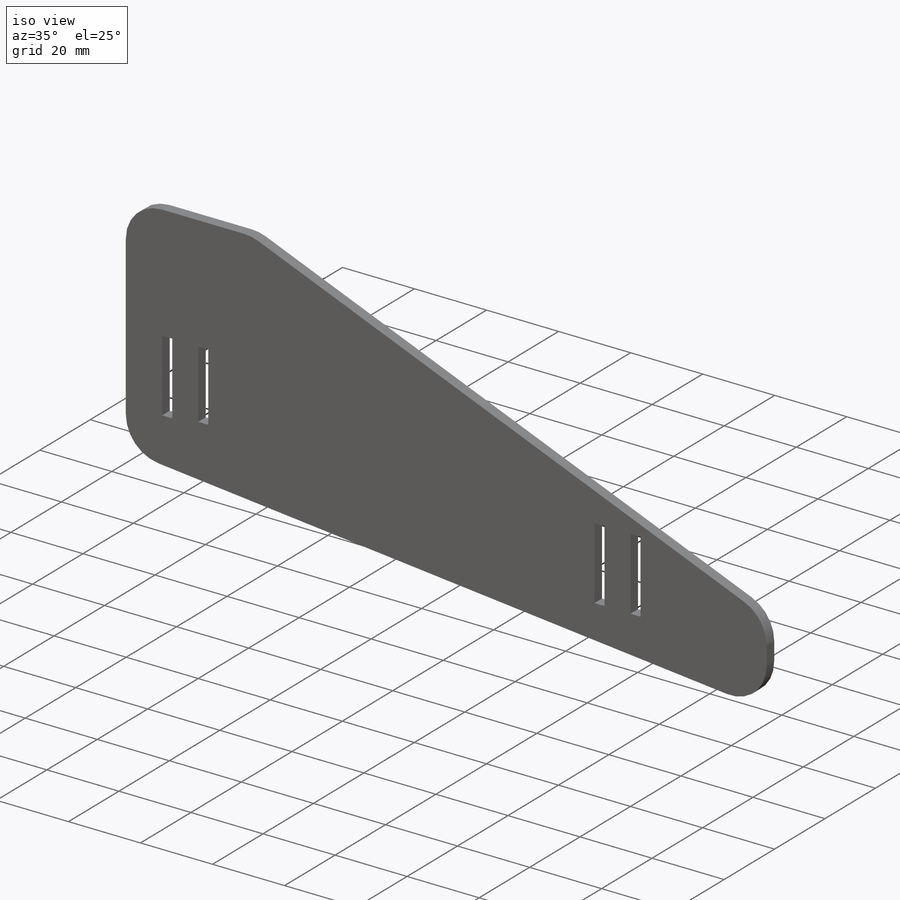
[diagram: iso view]
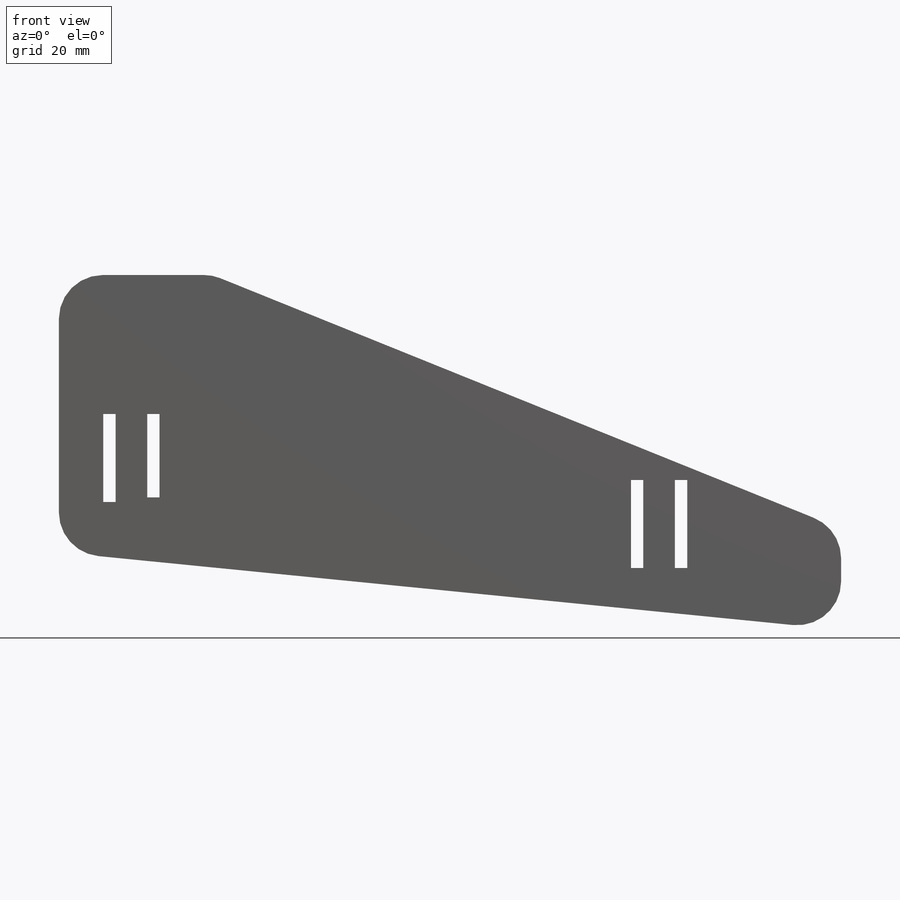
[diagram: front view]
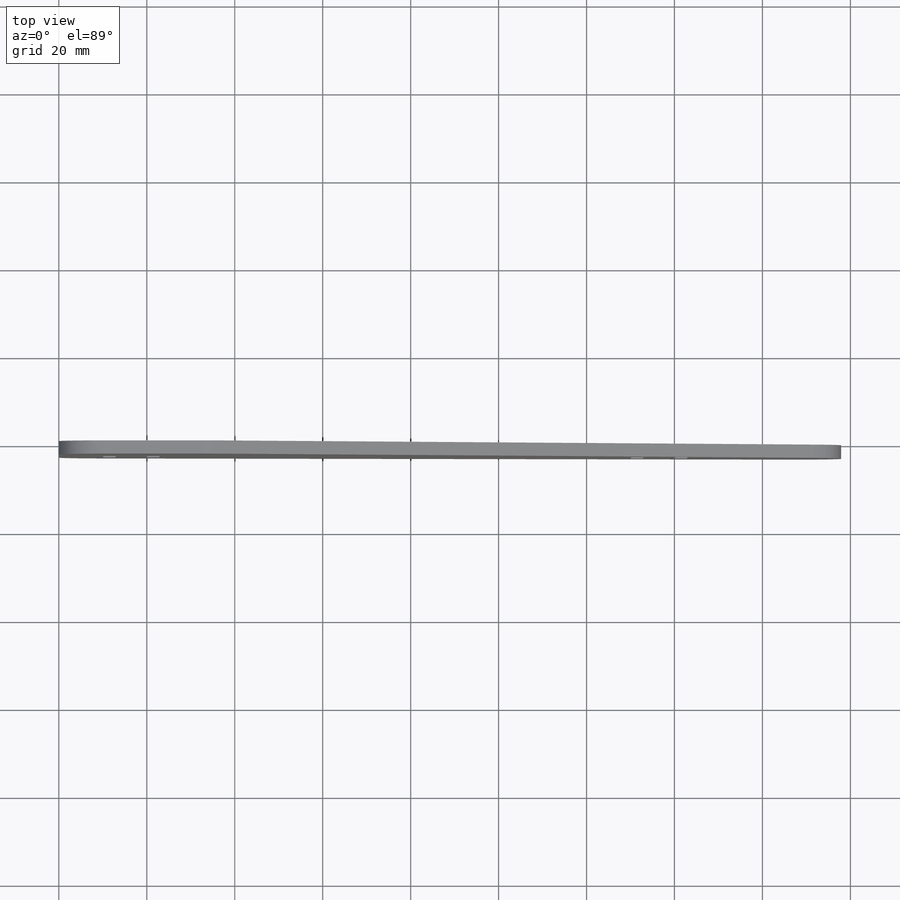
[diagram: top view]
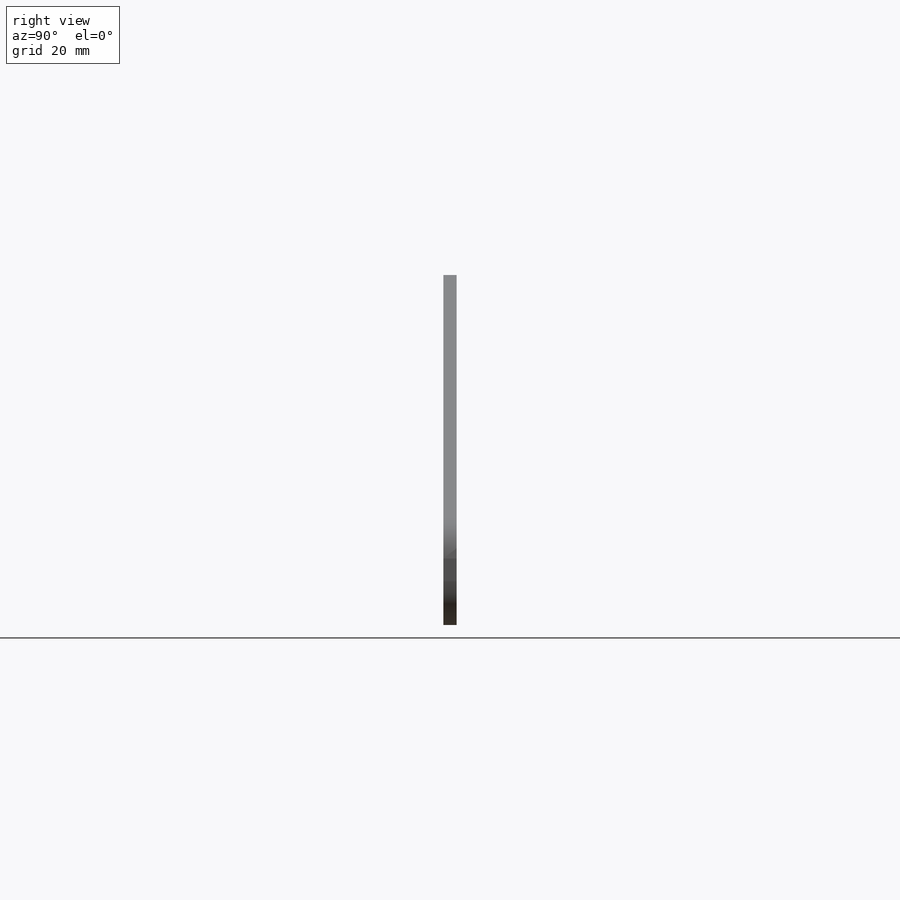
[diagram: right view]
SOLIDWORKS PART (.sldprt)
format: sldprt  version: not decoded by parser v0  size: 207,360 bytes
history: native  units: mm
features: sketch x2, fillet x2, material x1, extrude x1, cut_extrude x1 (+11 scaffold rows collapsed)
feature tree (18):
  scaffold x11  (default folders/planes/origin — collapsed)
  material  "Acrylic (Medium-high impact)"
  sketch  "Sketch2"  dims[c1.D1=25.0mm c1.D2=10.0mm c1.D3=2.0mm c1.D4=20.0mm c1.D5=~2.426776mm c2.D4=20.0mm c2.D5=~2.386993mm c3.D4=0.1mm c3.D5=0.1mm c3.D6=0.1mm c3.D7=0.1mm c3.D8=0.1mm c3.D9=0.1mm c3.D10=0.1mm c3.D11=0.1mm]
  extrude  "Boss-Extrude1"  Depth=3mm
  fillet  "Fillet1"  Radius=10mm
  sketch  "Sketch3"  dims[c1.D1=~4.505789mm c1.D2=~44.443941mm c2.D1=4.0mm]
  cut_extrude  "Cut-Extrude1"  Depth=10mm
  fillet  "Fillet2"  Radius=10mm
decode coverage: 6 of 6 modeling features carry decoded parameters
note: ~ marks probable driven/reference dimensions
note: suppression state not decoded; provenance and decode notes live in map.json
